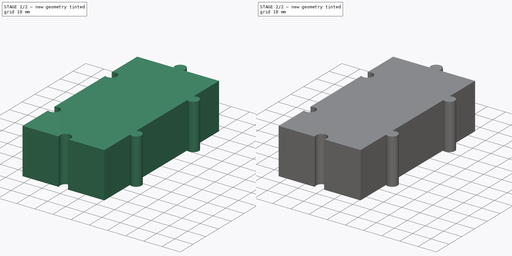
[diagram: build sequence overview — one tinted view per stage of 2, left to right]
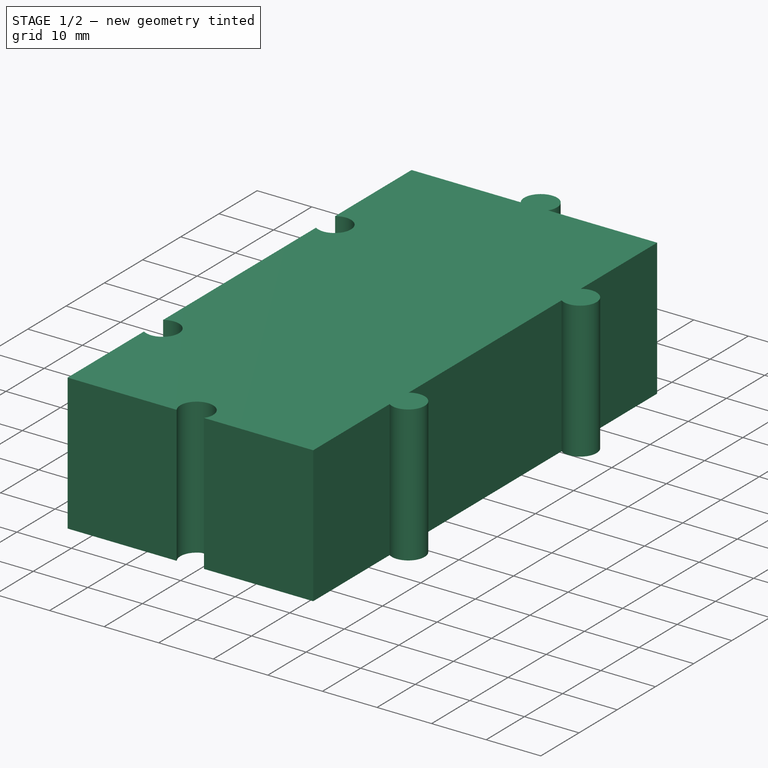
[diagram: stage 1 of 2 — iso view after this stage's code; geometry added in this stage tinted green]
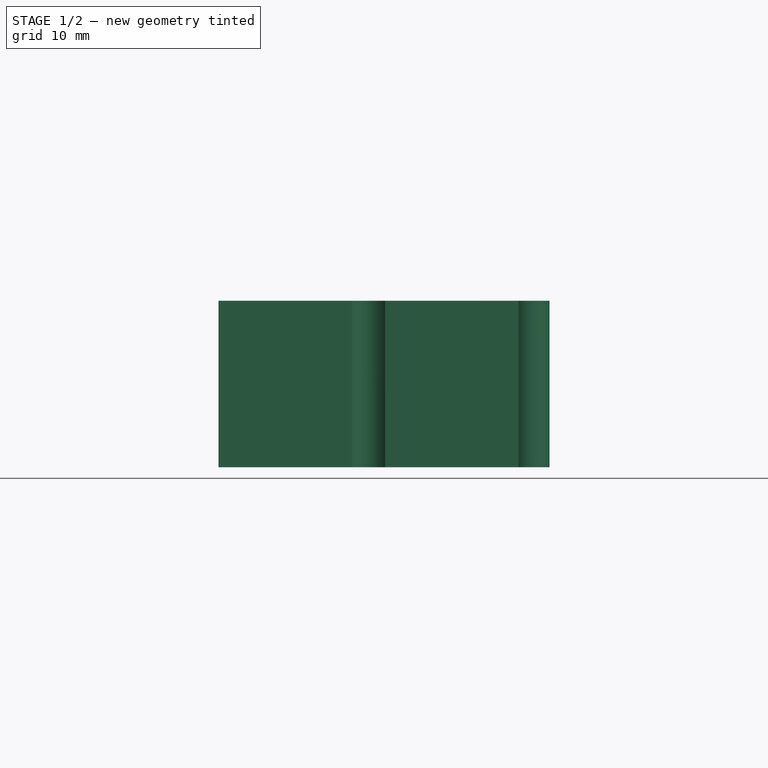
[diagram: stage 1 of 2 — front view after this stage's code; geometry added in this stage tinted green]
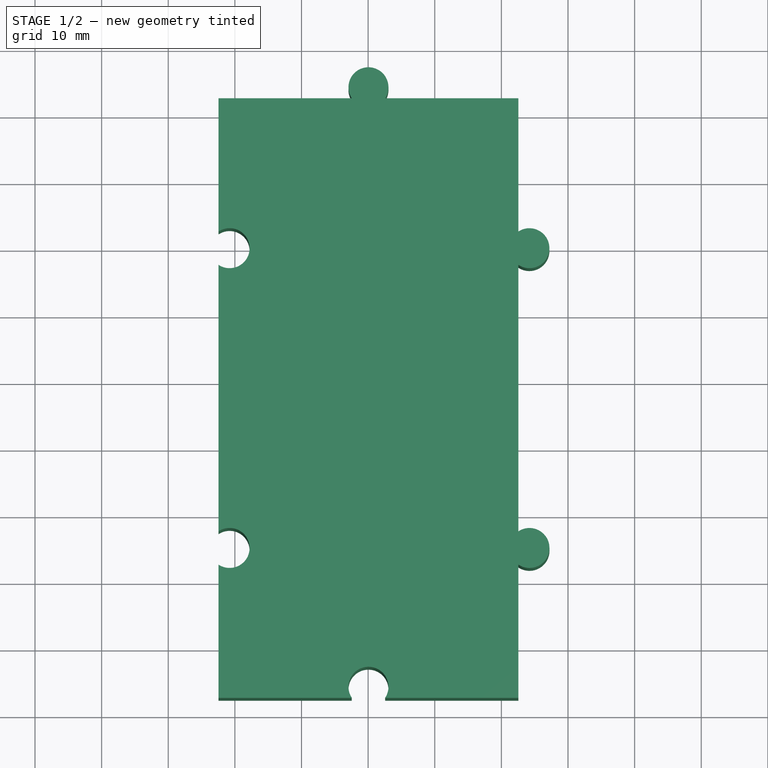
[diagram: stage 1 of 2 — top view after this stage's code; geometry added in this stage tinted green]
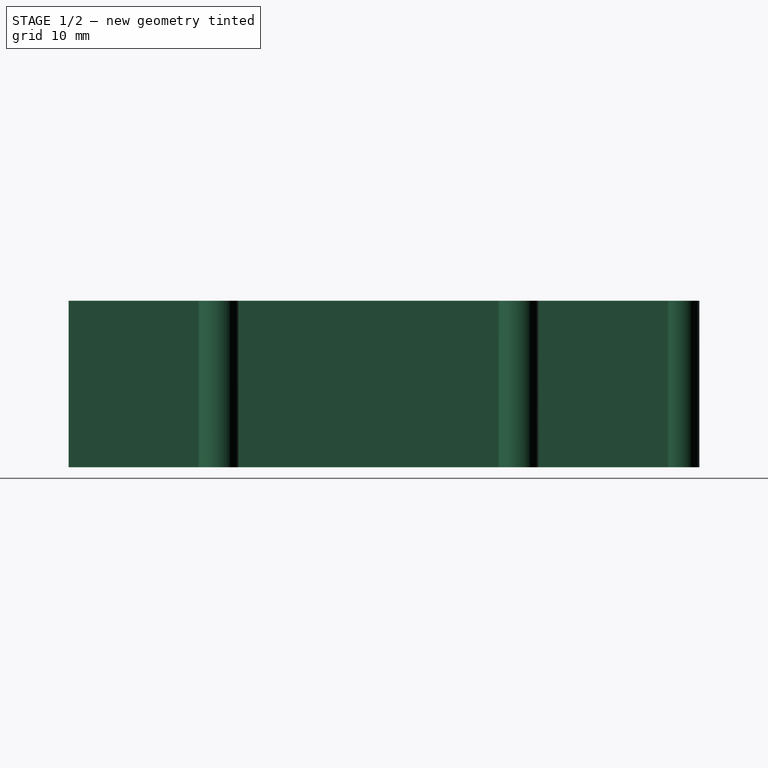
[diagram: stage 1 of 2 — right view after this stage's code; geometry added in this stage tinted green]
FCSTD DOCUMENT  (FreeCAD 0.17R13519 (Git))
Label: ShouNaHe-jwei-1.0
License: All rights reserved
LicenseURL: http://en.wikipedia.org/wiki/All_rights_reserved
objects: Sketcher::SketchObject×4, PartDesign::Pad×2, PartDesign::Pocket×2, PartDesign::Body×2
note: 14 computed .brp shape members not serialized (recipe doc carries the construction recipe); baked Part::Feature solids carry a one-line shape summary decoded from their .brp

FEATURE [PartDesign::Body] Body  label="45*45*25"
  Group = -> [Sketch,Pad,Sketch001,Pocket]
  Origin = -> Origin
  Tip = -> Pocket
FEATURE [Sketcher::SketchObject] Sketch002
  MapMode = 5
  Support = -> [XY_Plane001]
  sketch-geometry (16):
    g0: ArcOfCircle CenterX=0.0524523 CenterY=24.1583 CenterZ=0 NormalX=0 NormalY=0 NormalZ=1 AngleXU=0 Radius=3 StartAngle=5.6975 EndAngle=10.0105
    g1: ArcOfCircle CenterX=24.2057 CenterY=-0.00336158 CenterZ=0 NormalX=0 NormalY=0 NormalZ=1 AngleXU=0 Radius=3 StartAngle=4.12873 EndAngle=8.43764
    g2: LineSegment StartX=-2.44755 StartY=22.5 StartZ=0 EndX=-22.4475 EndY=22.5 EndZ=0
    g3: LineSegment StartX=-22.4475 StartY=22.5 StartZ=0 EndX=-22.4475 EndY=2.5 EndZ=0
    g4: LineSegment StartX=-22.4475 StartY=-2.5 StartZ=0 EndX=-22.4475 EndY=-42.5 EndZ=0
    g5: LineSegment StartX=-22.4475 StartY=-67.5 StartZ=0 EndX=-2.44755 EndY=-67.5 EndZ=0
    g6: LineSegment StartX=2.55245 StartY=-67.5 StartZ=0 EndX=22.5525 EndY=-67.5 EndZ=0
    g7: LineSegment StartX=22.5525 StartY=-42.5067 StartZ=0 EndX=22.5525 EndY=-2.50672 EndZ=0
    g8: LineSegment StartX=22.5525 StartY=2.5 StartZ=0 EndX=22.5525 EndY=22.5 EndZ=0
    g9: LineSegment StartX=22.5525 StartY=22.5 StartZ=0 EndX=2.55245 EndY=22.5 EndZ=0
    g10: ArcOfCircle CenterX=-20.7892 CenterY=0 CenterZ=0 NormalX=0 NormalY=0 NormalZ=1 AngleXU=0 Radius=3 StartAngle=4.1267 EndAngle=8.43967
    g11: LineSegment StartX=-22.4475 StartY=-67.5 StartZ=0 EndX=-22.4475 EndY=-47.5 EndZ=0
    g12: LineSegment StartX=22.5525 StartY=-67.5 StartZ=0 EndX=22.5525 EndY=-47.5 EndZ=0
    g13: ArcOfCircle CenterX=-20.7892 CenterY=-45 CenterZ=0 NormalX=0 NormalY=0 NormalZ=1 AngleXU=0 Radius=3 StartAngle=4.1267 EndAngle=8.43967
    g14: ArcOfCircle CenterX=24.2158 CenterY=-45.0034 CenterZ=0 NormalX=0 NormalY=0 NormalZ=1 AngleXU=0 Radius=3 StartAngle=4.12468 EndAngle=8.44169
    g15: ArcOfCircle CenterX=0.0524523 CenterY=-65.8417 CenterZ=0 NormalX=0 NormalY=0 NormalZ=1 AngleXU=0 Radius=3 StartAngle=5.6975 EndAngle=10.0105
  constraints (52):
    c: Coincident(g2,g0)
    c: Horizontal(g2)
    c: Coincident(g3,g2)
    c: Vertical(g4)
    c: Horizontal(g6)
    c: Coincident(g7,g1)
    c: Coincident(g1,g8)
    c: Coincident(g8,g9)
    c: Coincident(g9,g0)
    c: Horizontal(g9)
    c: Vertical(g3)
    c: Vertical(g4,g3)
    c: Horizontal(g5)
    c: Horizontal(g6,g5)
    c: Vertical(g7)
    c: Vertical(g8)
    c: Vertical(g1,g1)
    c: DistanceX(g2,g2) = 20
    c: DistanceX(g9,g9) = 20
    c: Distance(g0,g0) = 5
    c: Radius(g0) = 3
    c: DistanceY(g3,g3) = 20
    c: DistanceY(g8,g8) = 20
    c: DistanceX(g6,g6) = 20
    c: DistanceX(g5,g5) = 20
    c: Radius(g1) = 3
    c: Coincident(g10,g4)
    c: Coincident(g10,g3)
    c: Radius(g10) = 3
    c: PointOnObject(g10,g-1)
    c: Distance(g3,g4) = 5
    c: Horizontal(g0,g0)
    c: DistanceY(g4,g4) = 40
    c: Coincident(g11,g5)
    c: Vertical(g11)
    c: Coincident(g12,g6)
    c: Vertical(g12)
    c: Coincident(g13,g4)
    c: Coincident(g13,g11)
    c: DistanceY(g11,g11) = 20
    c: Distance(g4,g11) = 5
    c: Radius(g13) = 3
    c: Vertical(g11,g4)
    c: Coincident(g14,g7)
    c: Coincident(g14,g12)
    c: DistanceY(g7,g7) = 40
    c: DistanceY(g12,g12) = 20
    c: Radius(g14) = 3
    c: Vertical(g7,g12)
    c: Coincident(g15,g5)
    c: Coincident(g15,g6)
    c: Radius(g15) = 3
FEATURE [PartDesign::Pad] Pad001
  Length = 25
  Length2 = 100
  Profile = -> Sketch002
  Type = 0
FEATURE [Sketcher::SketchObject] Sketch003
  ExternalGeometry = -> [Pad001]
  MapMode = 5
  Placement = pos=(0,0,0) rot=(1,0,0;3.14159rad)
  Support = -> [Pad001]
  sketch-geometry (22):
    g0: LineSegment StartX=-20.4475 StartY=49.9805 StartZ=0 EndX=-20.4475 EndY=65.5 EndZ=0
    g1: LineSegment StartX=-20.4475 StartY=65.5 StartZ=0 EndX=-4.92803 EndY=65.5 EndZ=0
    g2: LineSegment StartX=4.96312 StartY=65.115 StartZ=0 EndX=20.5525 EndY=65.115 EndZ=0
    g3: LineSegment StartX=20.5525 StartY=65.115 StartZ=0 EndX=20.5525 EndY=-20.5 EndZ=0
    g4: LineSegment StartX=20.5525 StartY=-20.5 StartZ=0 EndX=-20.4475 EndY=-20.5 EndZ=0
    g5: LineSegment StartX=-20.4475 StartY=-20.5 StartZ=0 EndX=-20.4475 EndY=-4.98048 EndZ=0
    g6: LineSegment StartX=-20.4475 StartY=4.98048 StartZ=0 EndX=-20.4475 EndY=40.0195 EndZ=0
    g7: ArcOfCircle CenterX=-20.7809 CenterY=45 CenterZ=0 NormalX=0 NormalY=0 NormalZ=1 AngleXU=0 Radius=4.99162 StartAngle=4.77921 EndAngle=7.78716
    g8: GeomPoint X=-17.7892 Y=45 Z=0
    g9: GeomPoint X=-15.7892 Y=45 Z=0
    g10: GeomPoint X=-20.4475 Y=42.0195 Z=0
    g11: GeomPoint X=-20.4475 Y=47.9805 Z=0
    g12: ArcOfCircle CenterX=-20.7809 CenterY=0 CenterZ=0 NormalX=0 NormalY=0 NormalZ=1 AngleXU=0 Radius=4.99162 StartAngle=4.77921 EndAngle=7.78716
    g13: GeomPoint X=-20.4475 Y=2.98048 Z=0
    g14: GeomPoint X=-17.7892 Y=0 Z=0
    g15: GeomPoint X=-20.4475 Y=-2.98048 Z=0
    g16: GeomPoint X=-15.7892 Y=0 Z=0
    g17: ArcOfCircle CenterX=0.0373833 CenterY=65.8172 CenterZ=0 NormalX=0 NormalY=0 NormalZ=1 AngleXU=0 Radius=4.97553 StartAngle=3.20539 EndAngle=6.14159
    g18: GeomPoint X=0.0524523 Y=60.8417 Z=0
    g19: GeomPoint X=-2.92803 Y=65.5 Z=0
    g20: GeomPoint X=0.0524523 Y=62.8417 Z=0
    g21: GeomPoint X=2.96312 Y=65.115 Z=0
  constraints (56):
    c: Vertical(g0)
    c: Coincident(g0,g1)
    c: Horizontal(g1)
    c: Horizontal(g2)
    c: Coincident(g2,g3)
    c: Vertical(g3)
    c: Coincident(g3,g4)
    c: Horizontal(g4)
    c: Coincident(g4,g5)
    c: Vertical(g6)
    c: Distance(g0,g-4) = 2
    c: Distance(g0,g-3) = 2
    c: Distance(g2,g-6) = 2
    c: Distance(g3,g-8) = 2
    c: Distance(g6,g-9) = 2
    c: Distance(g4,g-7) = 2
    c: Vertical(g5)
    c: Coincident(g7,g0)
    c: Coincident(g7,g6)
    c: Horizontal(g7,g-11)
    c: PointOnObject(g8,g-11)
    c: PointOnObject(g9,g7)
    c: Horizontal(g8,g7)
    c: Horizontal(g9,g8)
    c: Distance(g9,g8) = 2
    c: PointOnObject(g10,g-11)
    c: Vertical(g10,g6)
    c: Distance(g10,g6) = 2
    c: PointOnObject(g11,g-11)
    c: Vertical(g11,g0)
    c: Coincident(g12,g6)
    c: Coincident(g12,g5)
    c: PointOnObject(g13,g-12)
    c: PointOnObject(g14,g-12)
    c: PointOnObject(g15,g-12)
    c: Vertical(g15,g5)
    c: Distance(g15,g5) = 2
    c: Vertical(g13,g6)
    c: Distance(g6,g13) = 2
    c: PointOnObject(g16,g12)
    c: Horizontal(g16,g14)
    c: Horizontal(g14,g12)
    c: Distance(g16,g14) = 2
    c: Coincident(g17,g1)
    c: Coincident(g17,g2)
    c: PointOnObject(g18,g17)
    c: PointOnObject(g19,g-10)
    c: PointOnObject(g20,g-10)
    c: Vertical(g20,g18)
    c: Vertical(g20,g-10)
    c: Distance(g20,g18) = 2
    c: Horizontal(g19,g1)
    c: Distance(g19,g1) = 2
    c: PointOnObject(g21,g-10)
    c: Horizontal(g21,g2)
    c: Distance(g21,g2) = 2
FEATURE [PartDesign::Pocket] Pocket001
  BaseFeature = -> Pad001
  Length = 23
  Length2 = 100
  Profile = -> Sketch003
  Type = 0
FEATURE [PartDesign::Body] Body001  label="90*45*25"
  Group = -> [Sketch002,Pad001,Sketch003,Pocket001]
  Origin = -> Origin001
  Placement = pos=(0,90,0) rot=(0,0,1;0rad)
  Tip = -> Pocket001
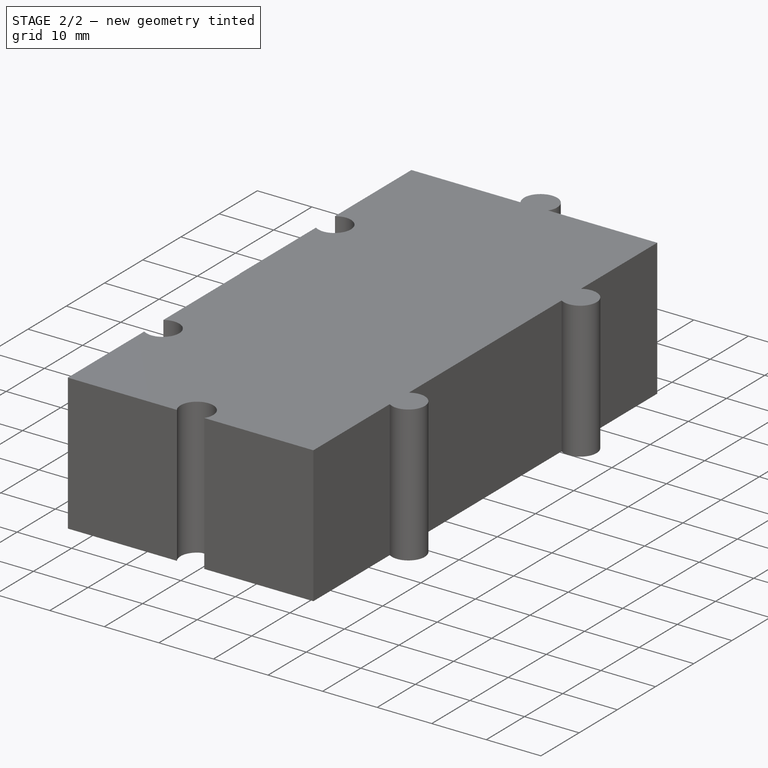
[diagram: stage 2 of 2 — iso view after this stage's code; geometry added in this stage tinted green]
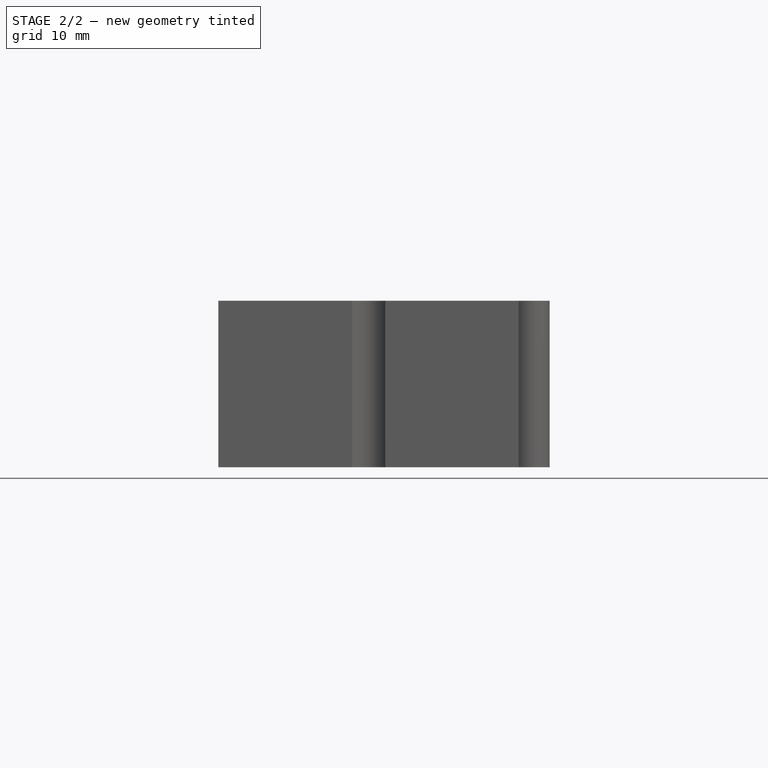
[diagram: stage 2 of 2 — front view after this stage's code; geometry added in this stage tinted green]
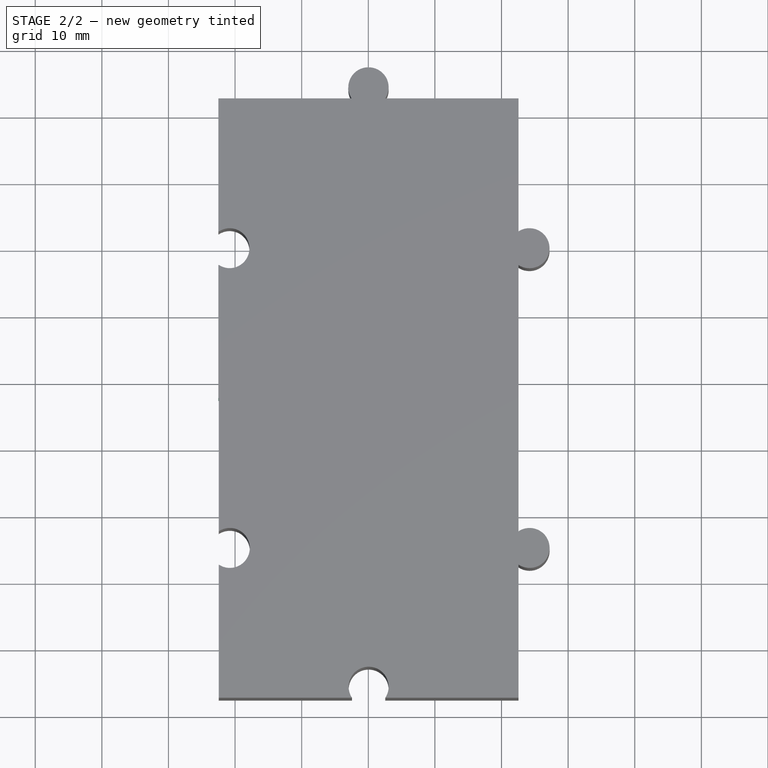
[diagram: stage 2 of 2 — top view after this stage's code; geometry added in this stage tinted green]
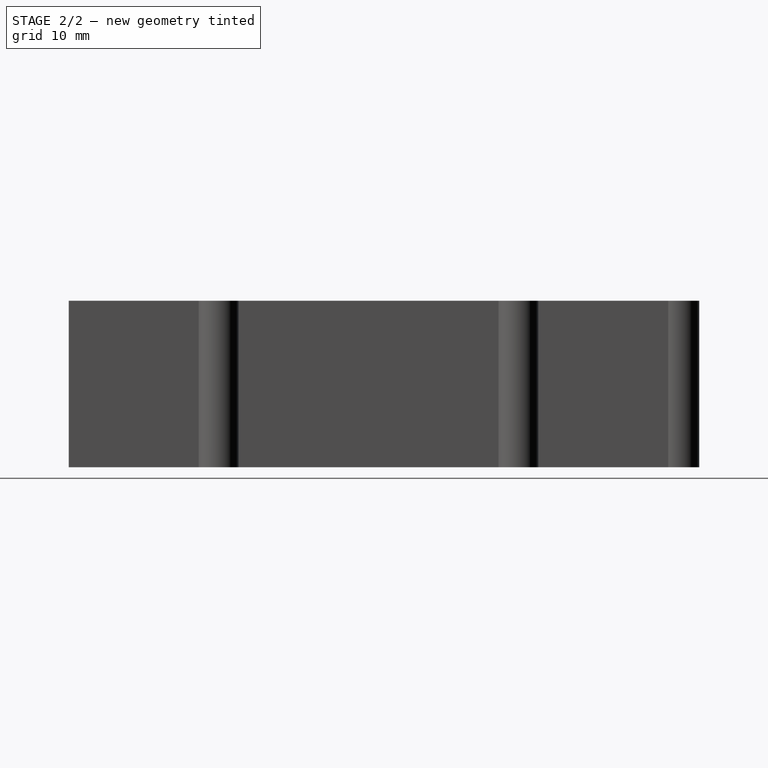
[diagram: stage 2 of 2 — right view after this stage's code; geometry added in this stage tinted green]
FEATURE [Sketcher::SketchObject] Sketch
  MapMode = 5
  Support = -> [XY_Plane]
  sketch-geometry (12):
    g0: ArcOfCircle CenterX=0 CenterY=24.1583 CenterZ=0 NormalX=0 NormalY=0 NormalZ=1 AngleXU=0 Radius=3 StartAngle=5.6975 EndAngle=10.0105
    g1: LineSegment StartX=-22.5 StartY=22.5 StartZ=0 EndX=-2.5 EndY=22.5 EndZ=0
    g2: LineSegment StartX=2.5 StartY=22.5 StartZ=0 EndX=22.5 EndY=22.5 EndZ=0
    g3: ArcOfCircle CenterX=0 CenterY=-20.8417 CenterZ=0 NormalX=0 NormalY=0 NormalZ=1 AngleXU=0 Radius=3 StartAngle=5.6975 EndAngle=10.0105
    g4: ArcOfCircle CenterX=24.1583 CenterY=0 CenterZ=0 NormalX=0 NormalY=0 NormalZ=1 AngleXU=0 Radius=3 StartAngle=4.1267 EndAngle=8.43967
    g5: LineSegment StartX=22.5 StartY=22.5 StartZ=0 EndX=22.5 EndY=2.5 EndZ=0
    g6: LineSegment StartX=22.5 StartY=-2.5 StartZ=0 EndX=22.5 EndY=-22.5 EndZ=0
    g7: LineSegment StartX=22.5 StartY=-22.5 StartZ=0 EndX=2.5 EndY=-22.5 EndZ=0
    g8: LineSegment StartX=-2.5 StartY=-22.5 StartZ=0 EndX=-22.5 EndY=-22.5 EndZ=0
    g9: LineSegment StartX=-22.5 StartY=-2.5 StartZ=0 EndX=-22.5 EndY=-22.5 EndZ=0
    g10: LineSegment StartX=-22.5 StartY=2.5 StartZ=0 EndX=-22.5 EndY=22.5 EndZ=0
    g11: ArcOfCircle CenterX=-20.8417 CenterY=0 CenterZ=0 NormalX=0 NormalY=0 NormalZ=1 AngleXU=0 Radius=3 StartAngle=4.1267 EndAngle=8.43967
  constraints (40):
    c: Distance(g0,g0) = 5
    c: Radius(g0) = 3
    c: Coincident(g1,g0)
    c: Horizontal(g1)
    c: Coincident(g2,g0)
    c: Horizontal(g2)
    c: DistanceX(g1,g1) = 20
    c: DistanceX(g2,g2) = 20
    c: Horizontal(g0,g0)
    c: Distance(g4,g4) = 5
    c: Coincident(g5,g2)
    c: Coincident(g5,g4)
    c: Coincident(g6,g4)
    c: Coincident(g7,g6)
    c: Coincident(g7,g3)
    c: Coincident(g8,g3)
    c: Horizontal(g8)
    c: Coincident(g9,g8)
    c: Vertical(g9)
    c: Coincident(g10,g1)
    c: Vertical(g5)
    c: Vertical(g4,g4)
    c: Vertical(g6)
    c: DistanceY(g5,g5) = 20
    c: DistanceY(g6,g6) = 20
    c: Radius(g4) = 3
    c: Horizontal(g7)
    c: Distance(g3,g3) = 5
    c: Radius(g3) = 3
    c: Horizontal(g3,g3)
    c: Vertical(g10)
    c: Vertical(g10,g9)
    c: Distance(g10,g9) = 5
    c: DistanceX(g7,g7) = 20
    c: DistanceY(g9,g9) = 20
    c: Coincident(g11,g10)
    c: Coincident(g11,g9)
    c: Radius(g11) = 3
    c: PointOnObject(g11,g-1)
    c: PointOnObject(g0,g-2)
FEATURE [PartDesign::Pad] Pad
  Length = 25
  Length2 = 100
  Profile = -> Sketch
  Type = 0
FEATURE [Sketcher::SketchObject] Sketch001
  ExternalGeometry = -> [Pad]
  MapMode = 5
  Placement = pos=(0,0,0) rot=(1,0,0;3.14159rad)
  Support = -> [Pad]
  sketch-geometry (12):
    g0: LineSegment StartX=-20.5 StartY=20.5 StartZ=0 EndX=-5 EndY=20.5 EndZ=0
    g1: LineSegment StartX=-20.5 StartY=20.5 StartZ=0 EndX=-20.5 EndY=5 EndZ=0
    g2: LineSegment StartX=-20.5 StartY=-5 StartZ=0 EndX=-20.5 EndY=-20.5 EndZ=0
    g3: LineSegment StartX=-20.5 StartY=-20.5 StartZ=0 EndX=20.5 EndY=-20.5 EndZ=0
    g4: LineSegment StartX=20.5 StartY=-20.5 StartZ=0 EndX=20.5 EndY=20.5 EndZ=0
    g5: LineSegment StartX=20.5 StartY=20.5 StartZ=0 EndX=5 EndY=20.5 EndZ=0
    g6: ArcOfCircle CenterX=-20.8542 CenterY=0 CenterZ=0 NormalX=0 NormalY=0 NormalZ=1 AngleXU=0 Radius=5.01253 StartAngle=4.78311 EndAngle=7.78326
    g7: GeomPoint X=-15.8417 Y=0 Z=0
    g8: GeomPoint X=-17.8417 Y=0 Z=0
    g9: ArcOfCircle CenterX=0 CenterY=20.8542 CenterZ=0 NormalX=0 NormalY=0 NormalZ=1 AngleXU=0 Radius=5.01253 StartAngle=3.21232 EndAngle=6.21246
    g10: GeomPoint X=0 Y=17.8417 Z=0
    g11: GeomPoint X=0 Y=15.8417 Z=0
  constraints (34):
    c: Horizontal(g0)
    c: Vertical(g1)
    c: Coincident(g1,g0)
    c: Distance(g0,g-3) = 2
    c: Distance(g0,g-4) = 2
    c: Vertical(g2)
    c: Coincident(g3,g2)
    c: Horizontal(g3)
    c: Coincident(g4,g3)
    c: Vertical(g4)
    c: Coincident(g5,g4)
    c: Horizontal(g5)
    c: Distance(g4,g-7) = 2
    c: Distance(g4,g-8) = 2
    c: Distance(g3,g-10) = 2
    c: Distance(g2,g-5) = 2
    c: DistanceY(g-1,g2) = -5
    c: DistanceY(g-1,g1) = 5
    c: Coincident(g6,g2)
    c: Coincident(g6,g1)
    c: PointOnObject(g7,g6)
    c: PointOnObject(g8,g-11)
    c: PointOnObject(g8,g-1)
    c: PointOnObject(g7,g-1)
    c: Distance(g7,g8) = 2
    c: DistanceX(g-2,g0) = -5
    c: DistanceX(g-2,g5) = 5
    c: Coincident(g9,g0)
    c: Coincident(g9,g5)
    c: PointOnObject(g10,g-12)
    c: PointOnObject(g11,g9)
    c: PointOnObject(g11,g-2)
    c: PointOnObject(g10,g-2)
    c: Distance(g10,g11) = 2
FEATURE [PartDesign::Pocket] Pocket
  BaseFeature = -> Pad
  Length = 23
  Length2 = 100
  Profile = -> Sketch001
  Type = 0
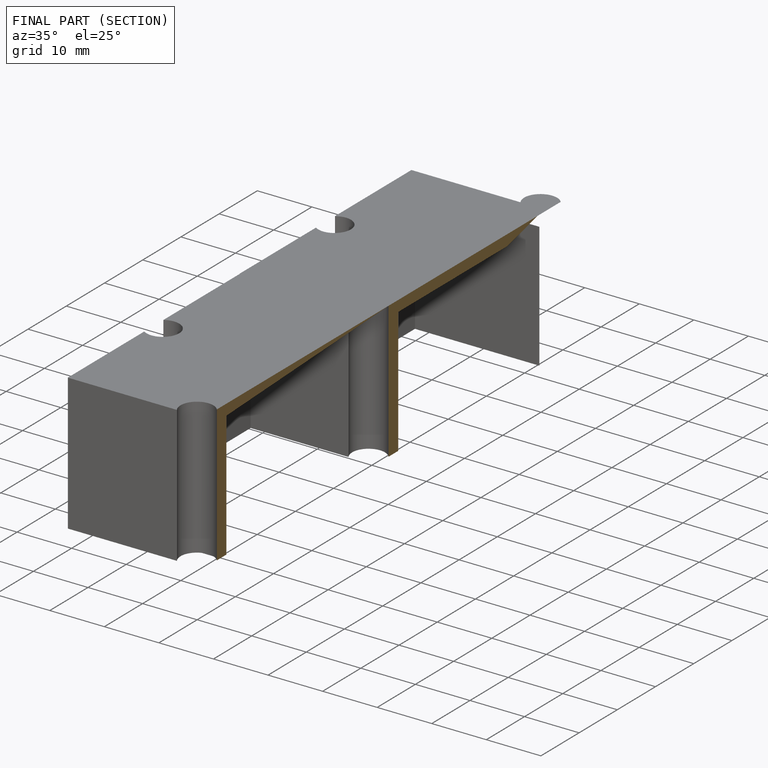
[diagram: finished part — half-section view (interior)]
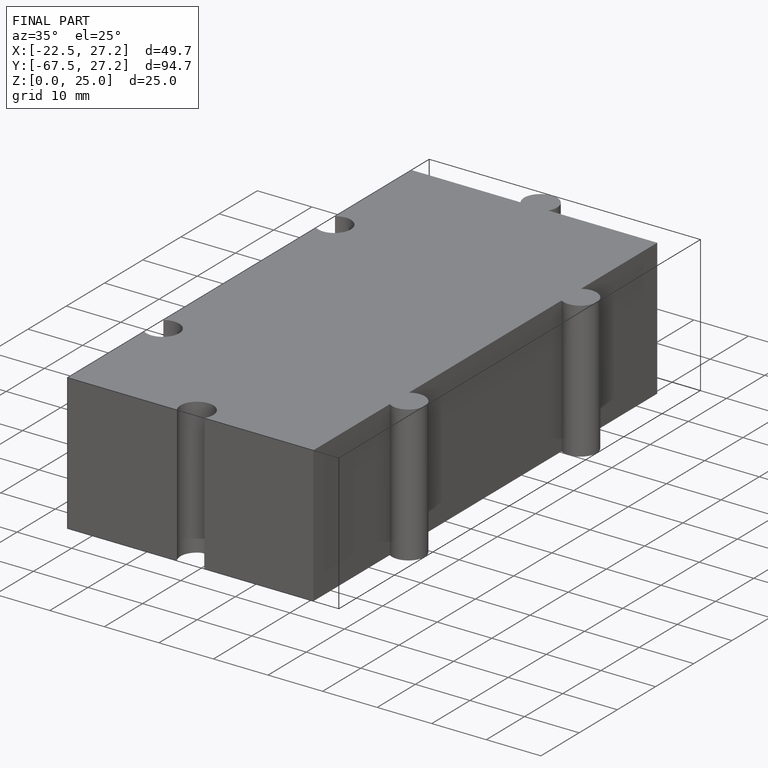
[diagram: finished part — iso view with bounding-box wireframe]
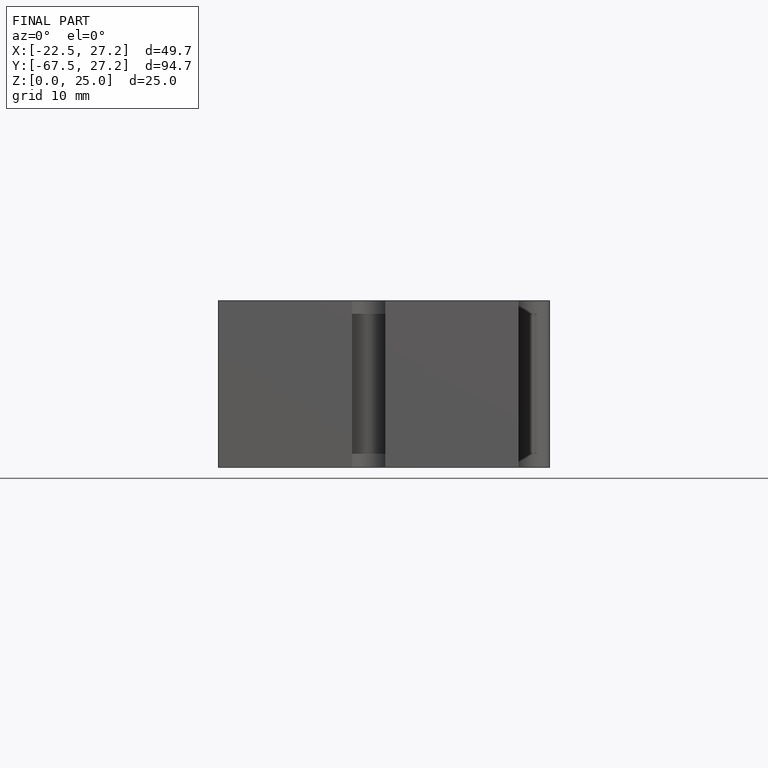
[diagram: finished part — front view with bounding-box wireframe]
